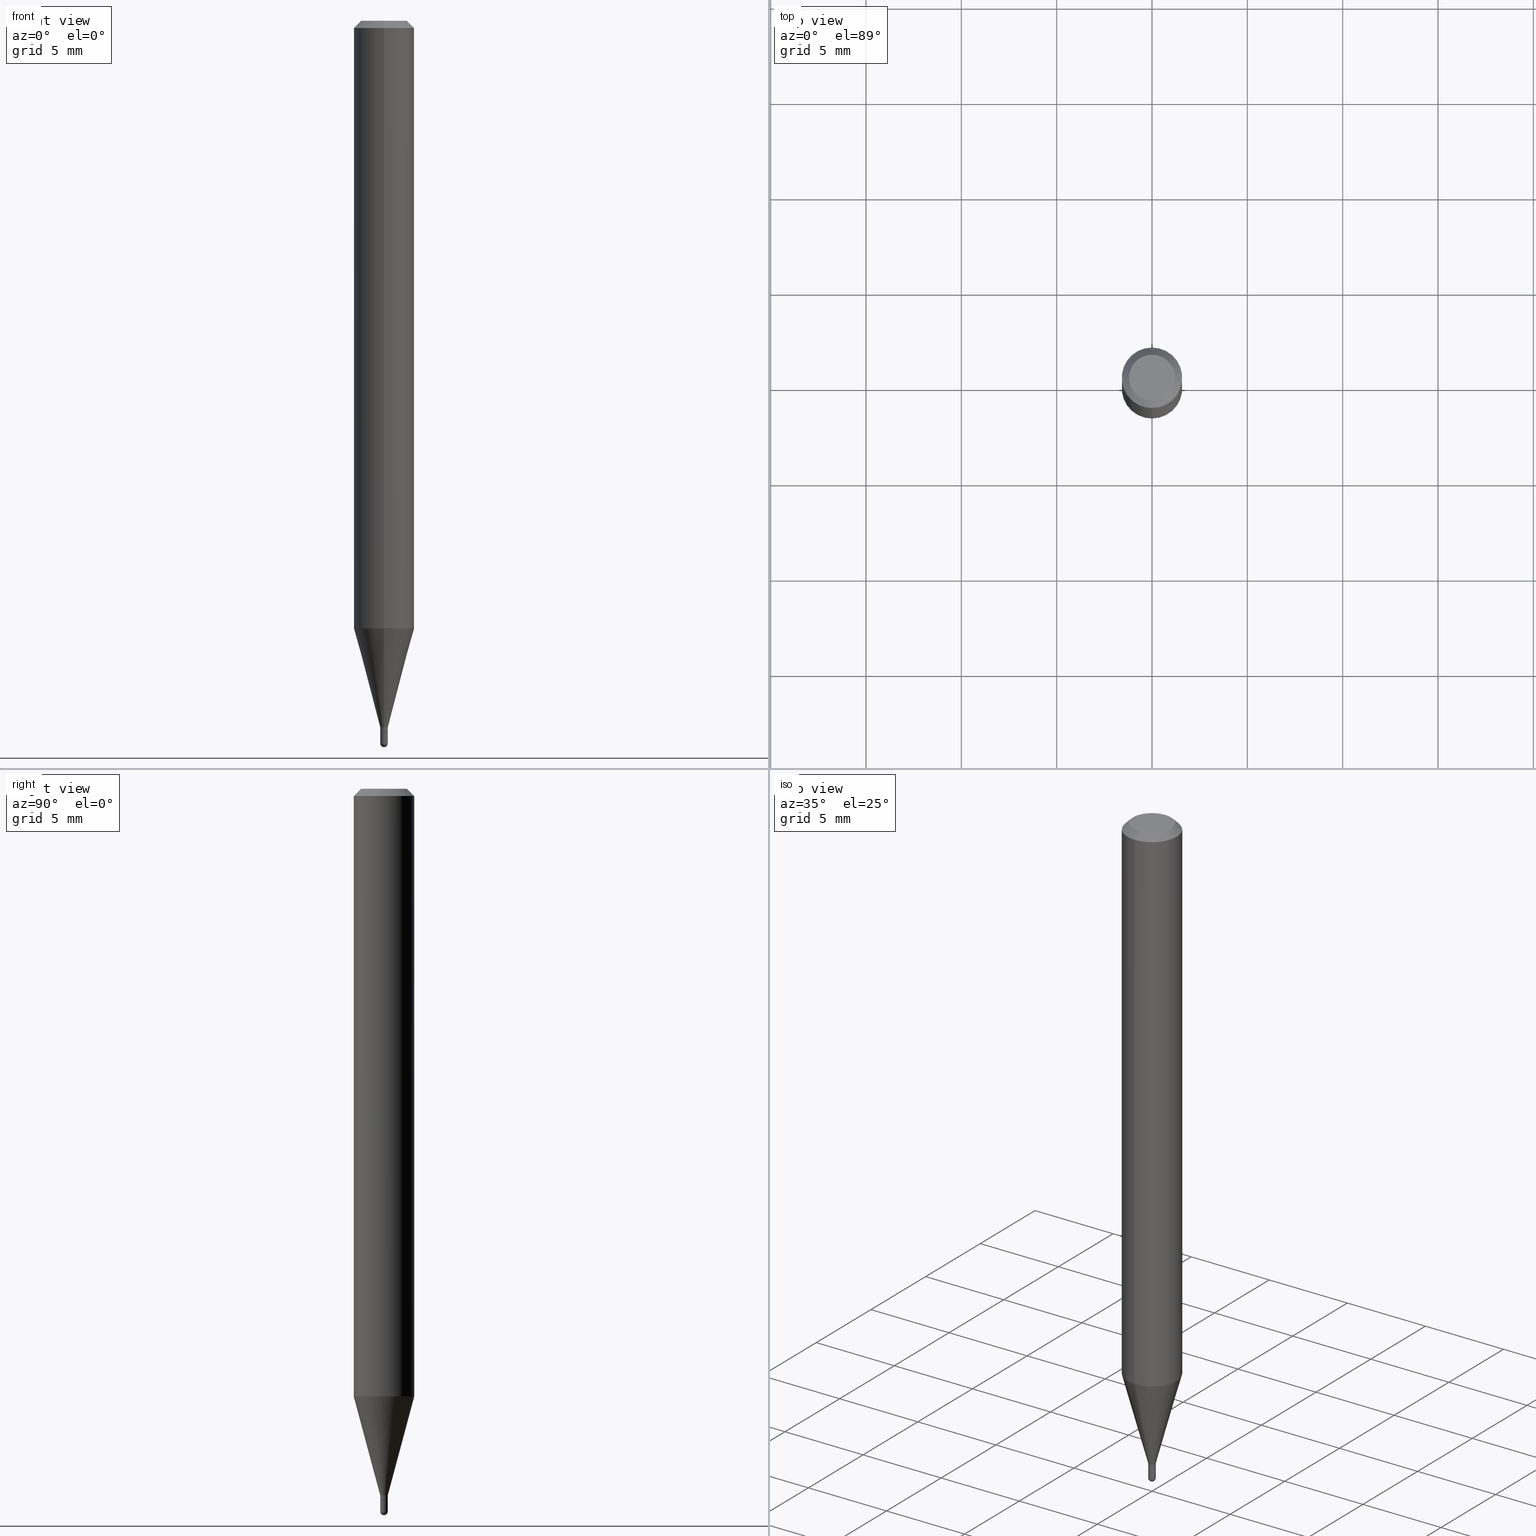
[diagram: canonical four-view strip — front | top / right | iso, engineering-drawing reading convention]
A machine part, canonical four-view strip (front | top / right | iso — engineering-drawing reading convention). The complete STEP part file that produces these views, byte-faithful:
ISO-10303-21;
HEADER;
FILE_DESCRIPTION (( 'STEP AP203' ),
    '1' );
FILE_NAME ('30031.STEP',
    '2024-03-08T15:16:30',
    ( '' ),
    ( '' ),
    'SwSTEP 2.0',
    'SolidWorks 2023',
    '' );
FILE_SCHEMA (( 'CONFIG_CONTROL_DESIGN' ));
ENDSEC;

DATA;
#1 = DIRECTION ( 'NONE',  ( -2.445232611711644986E-29, 3.491819582772540088E-15, 1.000000000000000000 ) ) ;
#2 = AXIS2_PLACEMENT_3D ( 'NONE', #370, #278, #377 ) ;
#3 = VECTOR ( 'NONE', #161, 39.37007874015748143 ) ;
#4 = EDGE_LOOP ( 'NONE', ( #254, #424 ) ) ;
#5 = CARTESIAN_POINT ( 'NONE',  ( 3.840629472727447874E-16, 0.04749999999999999362, -1.747056831868805136E-16 ) ) ;
#6 = APPLICATION_CONTEXT ( 'configuration controlled 3d designs of mechanical parts and assemblies' ) ;
#7 = EDGE_CURVE ( 'NONE', #144, #226, #283, .T. ) ;
#8 = DIRECTION ( 'NONE',  ( -2.445468806185136877E-29, 3.491481338843145188E-15, 1.000000000000000000 ) ) ;
#9 = PLANE ( 'NONE',  #438 ) ;
#10 = VECTOR ( 'NONE', #396, 39.37007874015748143 ) ;
#11 = CC_DESIGN_SECURITY_CLASSIFICATION ( #207, ( #477 ) ) ;
#12 = CARTESIAN_POINT ( 'NONE',  ( 3.649128552589461004E-29, -5.209988453821741932E-15, -1.492199999999999971 ) ) ;
#13 = DIRECTION ( 'NONE',  ( -2.445232611711644986E-29, 3.491819582772540483E-15, 1.000000000000000000 ) ) ;
#14 = CARTESIAN_POINT ( 'NONE',  ( 3.667869694424925332E-29, -5.237699620516385943E-15, -1.500000000000000222 ) ) ;
#15 = PRODUCT ( '30031', '30031', '', ( #494 ) ) ;
#16 = DIRECTION ( 'NONE',  ( -2.445232611711644986E-29, 3.491819582772540088E-15, 1.000000000000000000 ) ) ;
#17 = CIRCLE ( 'NONE', #284, 0.007799999999999999642 ) ;
#18 = ORIENTED_EDGE ( 'NONE', *, *, #512, .T. ) ;
#19 = APPROVAL_PERSON_ORGANIZATION ( #452, #62, #454 ) ;
#20 = VERTEX_POINT ( 'NONE', #126 ) ;
#21 = EDGE_CURVE ( 'NONE', #226, #264, #130, .T. ) ;
#22 = EDGE_CURVE ( 'NONE', #20, #264, #128, .T. ) ;
#23 = APPLICATION_PROTOCOL_DEFINITION ( 'international standard', 'config_control_design', 1994, #6 ) ;
#24 = CARTESIAN_POINT ( 'NONE',  ( 3.648461522883901316E-29, -5.210943678325075887E-15, -1.492199999999999971 ) ) ;
#25 = APPLICATION_PROTOCOL_DEFINITION ( 'international standard', 'config_control_design', 1994, #141 ) ;
#26 = PLANE ( 'NONE',  #108 ) ;
#27 = ORIENTED_EDGE ( 'NONE', *, *, #318, .F. ) ;
#28 = AXIS2_PLACEMENT_3D ( 'NONE', #488, #281, #446 ) ;
#29 = COORDINATED_UNIVERSAL_TIME_OFFSET ( 5, 0, .BEHIND. ) ;
#30 = DIRECTION ( 'NONE',  ( 2.445232611711644426E-29, -3.491819582772540483E-15, -1.000000000000000000 ) ) ;
#31 = ORIENTED_EDGE ( 'NONE', *, *, #43, .T. ) ;
#32 = CALENDAR_DATE ( 2024, 8, 3 ) ;
#33 = CYLINDRICAL_SURFACE ( 'NONE', #98, 0.007799999999999999642 ) ;
#34 = EDGE_LOOP ( 'NONE', ( #428, #150, #107, #194 ) ) ;
#35 = ORIENTED_EDGE ( 'NONE', *, *, #218, .F. ) ;
#36 = AXIS2_PLACEMENT_3D ( 'NONE', #297, #64, #73 ) ;
#37 = EDGE_LOOP ( 'NONE', ( #236, #435, #317, #228 ) ) ;
#38 = ORIENTED_EDGE ( 'NONE', *, *, #119, .F. ) ;
#39 = CARTESIAN_POINT ( 'NONE',  ( -5.542233338925151819E-17, -0.007800000000005239374, -1.492199999999999971 ) ) ;
#40 = VERTEX_POINT ( 'NONE', #97 ) ;
#41 = FACE_OUTER_BOUND ( 'NONE', #198, .T. ) ;
#42 = AXIS2_PLACEMENT_3D ( 'NONE', #124, #277, #90 ) ;
#43 = EDGE_CURVE ( 'NONE', #264, #160, #365, .T. ) ;
#44 = VERTEX_POINT ( 'NONE', #332 ) ;
#45 = FACE_OUTER_BOUND ( 'NONE', #34, .T. ) ;
#46 = DIRECTION ( 'NONE',  ( -6.982962677686265922E-15, -1.000000000000000000, 0.000000000000000000 ) ) ;
#47 = DIRECTION ( 'NONE',  ( -2.445232611711644986E-29, 3.491819582772540088E-15, 1.000000000000000000 ) ) ;
#48 = UNCERTAINTY_MEASURE_WITH_UNIT (LENGTH_MEASURE( 1.000000000000000082E-05 ), #205, 'distance_accuracy_value', 'NONE');
#49 = CARTESIAN_POINT ( 'NONE',  ( 3.592046706604406780E-29, -5.129482967092862317E-15, -1.469000000000000083 ) ) ;
#50 = CIRCLE ( 'NONE', #225, 0.06250000000000000000 ) ;
#51 = DIRECTION ( 'NONE',  ( -2.445232611711644986E-29, 3.491819582772540088E-15, 1.000000000000000000 ) ) ;
#52 = DIRECTION ( 'NONE',  ( -6.982962677686265922E-15, -1.000000000000000000, 3.491819582772540483E-15 ) ) ;
#53 = CARTESIAN_POINT ( 'NONE',  ( 0.000000000000000000, 0.000000000000000000, 0.000000000000000000 ) ) ;
#54 = DIRECTION ( 'NONE',  ( 1.000000000000000000, 0.000000000000000000, 0.000000000000000000 ) ) ;
#55 = EDGE_CURVE ( 'NONE', #473, #439, #184, .T. ) ;
#56 = ORIENTED_EDGE ( 'NONE', *, *, #497, .T. ) ;
#57 = CARTESIAN_POINT ( 'NONE',  ( 0.000000000000000000, 0.000000000000000000, 0.000000000000000000 ) ) ;
#58 = APPROVAL ( #117, 'UNSPECIFIED' ) ;
#59 = AXIS2_PLACEMENT_3D ( 'NONE', #378, #30, #347 ) ;
#60 = ORIENTED_EDGE ( 'NONE', *, *, #466, .F. ) ;
#61 = AXIS2_PLACEMENT_3D ( 'NONE', #234, #1, #46 ) ;
#62 = APPROVAL ( #337, 'UNSPECIFIED' ) ;
#63 = DIRECTION ( 'NONE',  ( -6.982962677686265922E-15, -1.000000000000000000, 0.000000000000000000 ) ) ;
#64 = DIRECTION ( 'NONE',  ( -2.445232611711644986E-29, 3.491819582772540088E-15, 1.000000000000000000 ) ) ;
#65 = DIRECTION ( 'NONE',  ( -2.445232611711644986E-29, 3.491819582772540088E-15, 1.000000000000000000 ) ) ;
#66 = DIRECTION ( 'NONE',  ( 1.000000000000000000, -6.982962677686265922E-15, 4.883557194083112340E-29 ) ) ;
#67 = ORIENTED_EDGE ( 'NONE', *, *, #21, .T. ) ;
#68 = LENGTH_MEASURE_WITH_UNIT ( LENGTH_MEASURE( 0.02539999999999999897 ), #134 );
#69 = CARTESIAN_POINT ( 'NONE',  ( -5.446710888591661439E-17, -0.007800000000005077178, -1.468500000000000139 ) ) ;
#70 = VERTEX_POINT ( 'NONE', #245 ) ;
#71 = AXIS2_PLACEMENT_3D ( 'NONE', #57, #103, #249 ) ;
#72 = CALENDAR_DATE ( 2024, 8, 3 ) ;
#73 = DIRECTION ( 'NONE',  ( -6.982962677686265922E-15, -1.000000000000000000, 3.491819582772540483E-15 ) ) ;
#74 = ORIENTED_EDGE ( 'NONE', *, *, #43, .F. ) ;
#75 = CARTESIAN_POINT ( 'NONE',  ( -4.287811248607203282E-16, -0.06250000000000005551, -0.01499999999999979128 ) ) ;
#76 = ORIENTED_EDGE ( 'NONE', *, *, #389, .F. ) ;
#77 = EDGE_CURVE ( 'NONE', #160, #388, #151, .T. ) ;
#78 = AXIS2_PLACEMENT_3D ( 'NONE', #24, #210, #140 ) ;
#79 = ORIENTED_EDGE ( 'NONE', *, *, #318, .T. ) ;
#80 = CARTESIAN_POINT ( 'NONE',  ( -4.364351673553916201E-16, -0.06250000000000000000, 2.182387239232837555E-16 ) ) ;
#81 = ORIENTED_EDGE ( 'NONE', *, *, #196, .T. ) ;
#82 = CIRCLE ( 'NONE', #350, 0.007800000000000059490 ) ;
#83 = DIRECTION ( 'NONE',  ( -6.982962677686265922E-15, -1.000000000000000000, 4.370956789862821150E-15 ) ) ;
#84 = CC_DESIGN_APPROVAL ( #58, ( #477 ) ) ;
#85 = ORIENTED_EDGE ( 'NONE', *, *, #182, .T. ) ;
#86 = DIRECTION ( 'NONE',  ( 6.982962677686265922E-15, 1.000000000000000000, -3.483106191921935554E-15 ) ) ;
#87 = CARTESIAN_POINT ( 'NONE',  ( 4.440892098500625669E-16, 0.06250000000000000000, -2.182387239232837555E-16 ) ) ;
#88 = DIRECTION ( 'NONE',  ( -6.982962677686265922E-15, -1.000000000000000000, 3.483106191921935554E-15 ) ) ;
#89 = CC_DESIGN_DATE_AND_TIME_ASSIGNMENT ( #387, #214, ( #207 ) ) ;
#90 = DIRECTION ( 'NONE',  ( 1.000000000000000000, -6.982962677686283277E-15, 0.000000000000000000 ) ) ;
#91 = AXIS2_PLACEMENT_3D ( 'NONE', #299, #408, #54 ) ;
#92 = FACE_OUTER_BOUND ( 'NONE', #338, .T. ) ;
#93 = ORIENTED_EDGE ( 'NONE', *, *, #374, .T. ) ;
#94 = CARTESIAN_POINT ( 'NONE',  ( -4.364351673553912750E-16, -0.06250000000000005551, -0.01499999999999979128 ) ) ;
#95 = EDGE_CURVE ( 'NONE', #358, #70, #499, .T. ) ;
#96 = ADVANCED_FACE ( 'NONE', ( #369 ), #157, .T. ) ;
#97 = CARTESIAN_POINT ( 'NONE',  ( -4.364351673553610024E-16, -0.06250000000000438538, -1.254856820825982933 ) ) ;
#98 = AXIS2_PLACEMENT_3D ( 'NONE', #201, #400, #399 ) ;
#99 = DIRECTION ( 'NONE',  ( -2.445232611711644986E-29, 3.491819582772540088E-15, 1.000000000000000000 ) ) ;
#100 = AXIS2_PLACEMENT_3D ( 'NONE', #197, #398, #482 ) ;
#101 = SPHERICAL_SURFACE ( 'NONE', #457, 0.007800000000000059490 ) ;
#102 = DIRECTION ( 'NONE',  ( 2.438088387897960049E-29, -3.491481338843145188E-15, -1.000000000000000000 ) ) ;
#103 = DIRECTION ( 'NONE',  ( -2.445232611711644986E-29, 3.491819582772540088E-15, 1.000000000000000000 ) ) ;
#104 = DIRECTION ( 'NONE',  ( -2.445468806185136597E-29, 3.491481338843145583E-15, 1.000000000000000000 ) ) ;
#105 = ORIENTED_EDGE ( 'NONE', *, *, #145, .T. ) ;
#106 = DIRECTION ( 'NONE',  ( 6.982962677686265922E-15, 1.000000000000000000, -3.483106191921935554E-15 ) ) ;
#107 = ORIENTED_EDGE ( 'NONE', *, *, #389, .T. ) ;
#108 = AXIS2_PLACEMENT_3D ( 'NONE', #459, #102, #143 ) ;
#109 = PERSON_AND_ORGANIZATION ( #274, #414 ) ;
#110 = CARTESIAN_POINT ( 'NONE',  ( -0.007799999999999999642, 5.542233338928781195E-17, -3.836769370398826244E-31 ) ) ;
#111 = ORIENTED_EDGE ( 'NONE', *, *, #497, .F. ) ;
#112 = EDGE_CURVE ( 'NONE', #264, #226, #476, .T. ) ;
#113 = ORIENTED_EDGE ( 'NONE', *, *, #22, .F. ) ;
#114 = VERTEX_POINT ( 'NONE', #14 ) ;
#115 = EDGE_CURVE ( 'NONE', #44, #147, #486, .T. ) ;
#116 = CIRCLE ( 'NONE', #509, 0.007799999999999999642 ) ;
#117 = APPROVAL_STATUS ( 'not_yet_approved' ) ;
#118 = CONICAL_SURFACE ( 'NONE', #61, 0.007799999999999922447, 0.2617993877991502960 ) ;
#119 = EDGE_CURVE ( 'NONE', #397, #251, #232, .T. ) ;
#120 = CYLINDRICAL_SURFACE ( 'NONE', #392, 0.06250000000000000000 ) ;
#121 = SPHERICAL_SURFACE ( 'NONE', #139, 0.007800000000000059490 ) ;
#122 = ORIENTED_EDGE ( 'NONE', *, *, #315, .F. ) ;
#123 = VECTOR ( 'NONE', #407, 39.37007874015748143 ) ;
#124 = CARTESIAN_POINT ( 'NONE',  ( 3.649128552589461004E-29, -5.209988453821741932E-15, -1.492199999999999971 ) ) ;
#125 = DIRECTION ( 'NONE',  ( 1.000000000000000000, -6.982962677686266711E-15, 4.876176775795935793E-29 ) ) ;
#126 = CARTESIAN_POINT ( 'NONE',  ( -5.097562754707381679E-17, -0.007300000000005128775, -1.469000000000000083 ) ) ;
#127 = DIRECTION ( 'NONE',  ( -2.445232611711644986E-29, 3.491819582772540088E-15, 1.000000000000000000 ) ) ;
#128 = LINE ( 'NONE', #453, #456 ) ;
#129 = CARTESIAN_POINT ( 'NONE',  ( 3.567594380487290426E-29, -5.094564771265136885E-15, -1.459000000000000297 ) ) ;
#130 = CIRCLE ( 'NONE', #382, 0.007799999999999923314 ) ;
#131 = AXIS2_PLACEMENT_3D ( 'NONE', #155, #272, #83 ) ;
#132 = DIRECTION ( 'NONE',  ( -6.982962677686265922E-15, -1.000000000000000000, 0.000000000000000000 ) ) ;
#133 = CC_DESIGN_DATE_AND_TIME_ASSIGNMENT ( #309, #263, ( #148 ) ) ;
#134 =( LENGTH_UNIT ( ) NAMED_UNIT ( * ) SI_UNIT ( $, .METRE. ) );
#135 = ORIENTED_EDGE ( 'NONE', *, *, #21, .F. ) ;
#136 = LINE ( 'NONE', #110, #333 ) ;
#137 = ADVANCED_FACE ( 'NONE', ( #92 ), #240, .T. ) ;
#138 = CARTESIAN_POINT ( 'NONE',  ( 3.592393676285966338E-29, -5.128986086760581011E-15, -1.469000000000000083 ) ) ;
#139 = AXIS2_PLACEMENT_3D ( 'NONE', #230, #320, #436 ) ;
#140 = DIRECTION ( 'NONE',  ( -7.105427357601000281E-15, -1.000000000000000000, 0.000000000000000000 ) ) ;
#141 = APPLICATION_CONTEXT ( 'configuration controlled 3d designs of mechanical parts and assemblies' ) ;
#142 = DATE_AND_TIME ( #72, #295 ) ;
#143 = DIRECTION ( 'NONE',  ( -1.000000000000000000, 6.982962677686265922E-15, -4.876176775795935793E-29 ) ) ;
#144 = VERTEX_POINT ( 'NONE', #146 ) ;
#145 = EDGE_CURVE ( 'NONE', #226, #388, #464, .T. ) ;
#146 = CARTESIAN_POINT ( 'NONE',  ( 5.364597654992319424E-17, 0.007299999999994869621, -1.469000000000000083 ) ) ;
#147 = VERTEX_POINT ( 'NONE', #508 ) ;
#148 = PRODUCT_DEFINITION ( 'UNKNOWN', '', #477, #241 ) ;
#149 = ORIENTED_EDGE ( 'NONE', *, *, #7, .F. ) ;
#150 = ORIENTED_EDGE ( 'NONE', *, *, #335, .T. ) ;
#151 = CIRCLE ( 'NONE', #206, 0.007799999999999922447 ) ;
#152 = CARTESIAN_POINT ( 'NONE',  ( 3.592046706604406780E-29, -5.129482967092862317E-15, -1.469000000000000083 ) ) ;
#153 = DIRECTION ( 'NONE',  ( -2.445232611711644986E-29, 3.491819582772540088E-15, 1.000000000000000000 ) ) ;
#154 = EDGE_CURVE ( 'NONE', #114, #251, #294, .T. ) ;
#155 = CARTESIAN_POINT ( 'NONE',  ( 3.068416821312490744E-29, -4.381733620535860243E-15, -1.254856820825983155 ) ) ;
#156 = EDGE_CURVE ( 'NONE', #388, #44, #455, .T. ) ;
#157 = CONICAL_SURFACE ( 'NONE', #265, 0.007799999999999922447, 0.2617993877991502960 ) ;
#158 = FACE_OUTER_BOUND ( 'NONE', #223, .T. ) ;
#159 = VECTOR ( 'NONE', #8, 39.37007874015748143 ) ;
#160 = VERTEX_POINT ( 'NONE', #170 ) ;
#161 = DIRECTION ( 'NONE',  ( 4.937700262164548042E-15, 0.7071067811865451302, -0.7071067811865499042 ) ) ;
#162 = DIRECTION ( 'NONE',  ( -6.982962677686265922E-15, -1.000000000000000000, 0.000000000000000000 ) ) ;
#163 = DIRECTION ( 'NONE',  ( -6.982962677686265922E-15, -1.000000000000000000, 3.491819582772540088E-15 ) ) ;
#164 =( NAMED_UNIT ( * ) SI_UNIT ( $, .STERADIAN. ) SOLID_ANGLE_UNIT ( ) );
#165 =( GEOMETRIC_REPRESENTATION_CONTEXT ( 3 ) GLOBAL_UNCERTAINTY_ASSIGNED_CONTEXT ( ( #48 ) ) GLOBAL_UNIT_ASSIGNED_CONTEXT ( ( #205, #376, #164 ) ) REPRESENTATION_CONTEXT ( 'NONE', 'WORKASPACE' ) );
#166 = DIRECTION ( 'NONE',  ( -2.445232611711644986E-29, 3.491819582772540483E-15, 1.000000000000000000 ) ) ;
#167 = PERSON_AND_ORGANIZATION ( #274, #414 ) ;
#168 = CARTESIAN_POINT ( 'NONE',  ( 3.590824090298550822E-29, -5.127737057301476164E-15, -1.468500000000000139 ) ) ;
#169 = CYLINDRICAL_SURFACE ( 'NONE', #71, 0.007799999999999922447 ) ;
#170 = CARTESIAN_POINT ( 'NONE',  ( -5.446710888591665753E-17, -0.007800000000005017330, -1.459000000000000297 ) ) ;
#171 = DIRECTION ( 'NONE',  ( -2.445232611711644986E-29, 3.491819582772540088E-15, 1.000000000000000000 ) ) ;
#172 = CC_DESIGN_PERSON_AND_ORGANIZATION_ASSIGNMENT ( #109, #304, ( #477 ) ) ;
#173 = DIRECTION ( 'NONE',  ( -4.851104656540964275E-15, -0.7071067811865500152, -0.7071067811865450192 ) ) ;
#174 = ORIENTED_EDGE ( 'NONE', *, *, #112, .F. ) ;
#175 = AXIS2_PLACEMENT_3D ( 'NONE', #242, #65, #339 ) ;
#176 = PERSON_AND_ORGANIZATION ( #274, #414 ) ;
#177 = LINE ( 'NONE', #75, #343 ) ;
#178 = ORIENTED_EDGE ( 'NONE', *, *, #95, .T. ) ;
#179 = CALENDAR_DATE ( 2024, 8, 3 ) ;
#180 = CARTESIAN_POINT ( 'NONE',  ( 3.592393676285966338E-29, -5.128986086760581011E-15, -1.469000000000000083 ) ) ;
#181 = ADVANCED_FACE ( 'NONE', ( #212 ), #26, .F. ) ;
#182 = EDGE_CURVE ( 'NONE', #471, #147, #50, .T. ) ;
#183 = EDGE_LOOP ( 'NONE', ( #451, #105, #289, #74 ) ) ;
#184 = CIRCLE ( 'NONE', #422, 0.04749999999999999362 ) ;
#185 = CC_DESIGN_APPROVAL ( #62, ( #148 ) ) ;
#186 = APPROVAL_ROLE ( '' ) ;
#187 = ORIENTED_EDGE ( 'NONE', *, *, #335, .F. ) ;
#188 = ORIENTED_EDGE ( 'NONE', *, *, #409, .F. ) ;
#189 = DIRECTION ( 'NONE',  ( 2.445232611711644986E-29, -3.491819582772540088E-15, -1.000000000000000000 ) ) ;
#190 = ORIENTED_EDGE ( 'NONE', *, *, #95, .F. ) ;
#191 = AXIS2_PLACEMENT_3D ( 'NONE', #53, #16, #163 ) ;
#192 = AXIS2_PLACEMENT_3D ( 'NONE', #360, #434, #125 ) ;
#193 = CARTESIAN_POINT ( 'NONE',  ( 0.000000000000000000, 0.000000000000000000, 0.000000000000000000 ) ) ;
#194 = ORIENTED_EDGE ( 'NONE', *, *, #329, .F. ) ;
#195 = CARTESIAN_POINT ( 'NONE',  ( 4.364351673553919652E-16, 0.06249999999999995143, -0.01500000000000022669 ) ) ;
#196 = EDGE_CURVE ( 'NONE', #439, #473, #256, .T. ) ;
#197 = CARTESIAN_POINT ( 'NONE',  ( 3.592046706604406780E-29, -5.129482967092862317E-15, -1.469000000000000083 ) ) ;
#198 = EDGE_LOOP ( 'NONE', ( #393, #18, #56, #187 ) ) ;
#199 = LINE ( 'NONE', #195, #3 ) ;
#200 = DIRECTION ( 'NONE',  ( 1.000000000000000000, -6.982962677686283277E-15, 0.000000000000000000 ) ) ;
#201 = CARTESIAN_POINT ( 'NONE',  ( 0.000000000000000000, 0.000000000000000000, 0.000000000000000000 ) ) ;
#202 = DIRECTION ( 'NONE',  ( -2.445468806185136597E-29, 3.491481338843145583E-15, 1.000000000000000000 ) ) ;
#203 = DIRECTION ( 'NONE',  ( -2.445232611711644986E-29, 3.491819582772540088E-15, 1.000000000000000000 ) ) ;
#204 = DIRECTION ( 'NONE',  ( -6.982962677686265922E-15, -1.000000000000000000, 0.000000000000000000 ) ) ;
#205 =( CONVERSION_BASED_UNIT ( 'INCH', #68 ) LENGTH_UNIT ( ) NAMED_UNIT ( #229 ) );
#206 = AXIS2_PLACEMENT_3D ( 'NONE', #496, #208, #132 ) ;
#207 = SECURITY_CLASSIFICATION ( '', '', #381 ) ;
#208 = DIRECTION ( 'NONE',  ( -2.445232611711644986E-29, 3.491819582772540088E-15, 1.000000000000000000 ) ) ;
#209 = LINE ( 'NONE', #489, #492 ) ;
#210 = DIRECTION ( 'NONE',  ( -1.000000000000000000, 7.105427357601001070E-15, -4.926315508542082329E-29 ) ) ;
#211 = DATE_AND_TIME ( #246, #227 ) ;
#212 = FACE_OUTER_BOUND ( 'NONE', #348, .T. ) ;
#213 = EDGE_LOOP ( 'NONE', ( #122, #355, #38, #27 ) ) ;
#214 = DATE_TIME_ROLE ( 'classification_date' ) ;
#215 = FACE_OUTER_BOUND ( 'NONE', #183, .T. ) ;
#216 = CIRCLE ( 'NONE', #285, 0.007299999999999999198 ) ;
#217 = APPROVAL_ROLE ( '' ) ;
#218 = EDGE_CURVE ( 'NONE', #418, #420, #17, .T. ) ;
#219 = DIRECTION ( 'NONE',  ( 1.000000000000000000, -6.982962677686283277E-15, 0.000000000000000000 ) ) ;
#220 = ORIENTED_EDGE ( 'NONE', *, *, #255, .F. ) ;
#221 = PERSON_AND_ORGANIZATION_ROLE ( 'design_supplier' ) ;
#222 = DIRECTION ( 'NONE',  ( 1.000000000000000000, -6.982962677686283277E-15, 0.000000000000000000 ) ) ;
#223 = EDGE_LOOP ( 'NONE', ( #79, #361, #35, #394, #178 ) ) ;
#224 = ORIENTED_EDGE ( 'NONE', *, *, #55, .F. ) ;
#225 = AXIS2_PLACEMENT_3D ( 'NONE', #498, #356, #300 ) ;
#226 = VERTEX_POINT ( 'NONE', #470 ) ;
#227 = LOCAL_TIME ( 10, 16, 30.00000000000000000, #252 ) ;
#228 = ORIENTED_EDGE ( 'NONE', *, *, #329, .T. ) ;
#229 = DIMENSIONAL_EXPONENTS ( 1.000000000000000000, 0.000000000000000000, 0.000000000000000000, 0.000000000000000000, 0.000000000000000000, 0.000000000000000000, 0.000000000000000000 ) ;
#230 = CARTESIAN_POINT ( 'NONE',  ( 3.648461522883901316E-29, -5.210943678325075887E-15, -1.492199999999999971 ) ) ;
#231 = ORIENTED_EDGE ( 'NONE', *, *, #77, .T. ) ;
#232 = CIRCLE ( 'NONE', #28, 0.007799999999999999642 ) ;
#233 = CIRCLE ( 'NONE', #42, 0.007799999999999999642 ) ;
#234 = CARTESIAN_POINT ( 'NONE',  ( 3.567594380487290426E-29, -5.094564771265136885E-15, -1.459000000000000297 ) ) ;
#235 = CARTESIAN_POINT ( 'NONE',  ( 0.007799999999999999642, -5.183453195646533500E-15, -1.469000000000000083 ) ) ;
#236 = ORIENTED_EDGE ( 'NONE', *, *, #268, .F. ) ;
#237 = FACE_OUTER_BOUND ( 'NONE', #270, .T. ) ;
#238 = CARTESIAN_POINT ( 'NONE',  ( 5.186961971052321953E-17, 0.007299999999994869621, -1.469000000000000083 ) ) ;
#239 = CARTESIAN_POINT ( 'NONE',  ( 3.592046706604406780E-29, -5.129482967092862317E-15, -1.469000000000000083 ) ) ;
#240 = CYLINDRICAL_SURFACE ( 'NONE', #191, 0.06250000000000000000 ) ;
#241 = DESIGN_CONTEXT ( 'detailed design', #141, 'design' ) ;
#242 = CARTESIAN_POINT ( 'NONE',  ( 3.068416821312490744E-29, -4.381733620535860243E-15, -1.254856820825983155 ) ) ;
#243 = ORIENTED_EDGE ( 'NONE', *, *, #7, .T. ) ;
#244 = CARTESIAN_POINT ( 'NONE',  ( -3.773273898774340269E-16, -0.04749999999999999362, 1.570171771765107987E-16 ) ) ;
#245 = CARTESIAN_POINT ( 'NONE',  ( 5.446710888598957169E-17, 0.007799999999994819758, -1.492199999999999971 ) ) ;
#246 = CALENDAR_DATE ( 2024, 8, 3 ) ;
#247 = CIRCLE ( 'NONE', #493, 0.007299999999999999198 ) ;
#248 = DIRECTION ( 'NONE',  ( 1.000000000000000000, -6.982962677686283277E-15, 0.000000000000000000 ) ) ;
#249 = DIRECTION ( 'NONE',  ( -6.982962677686265922E-15, -1.000000000000000000, 3.491819582772540483E-15 ) ) ;
#250 = FACE_OUTER_BOUND ( 'NONE', #37, .T. ) ;
#251 = VERTEX_POINT ( 'NONE', #39 ) ;
#252 = COORDINATED_UNIVERSAL_TIME_OFFSET ( 5, 0, .BEHIND. ) ;
#253 = FACE_OUTER_BOUND ( 'NONE', #312, .T. ) ;
#254 = ORIENTED_EDGE ( 'NONE', *, *, #372, .F. ) ;
#255 = EDGE_CURVE ( 'NONE', #397, #420, #136, .T. ) ;
#256 = CIRCLE ( 'NONE', #437, 0.04749999999999999362 ) ;
#257 = CIRCLE ( 'NONE', #131, 0.06250000000000000000 ) ;
#258 = CARTESIAN_POINT ( 'NONE',  ( 3.648461522883901316E-29, -5.210943678325075887E-15, -1.492199999999999971 ) ) ;
#259 = ORIENTED_EDGE ( 'NONE', *, *, #315, .T. ) ;
#260 = DATE_AND_TIME ( #302, #510 ) ;
#261 = CARTESIAN_POINT ( 'NONE',  ( 3.667848917567469827E-31, -5.237729374158814249E-17, -0.01500000000000000812 ) ) ;
#262 = EDGE_LOOP ( 'NONE', ( #81, #505 ) ) ;
#263 = DATE_TIME_ROLE ( 'creation_date' ) ;
#264 = VERTEX_POINT ( 'NONE', #69 ) ;
#265 = AXIS2_PLACEMENT_3D ( 'NONE', #286, #326, #162 ) ;
#266 = ORIENTED_EDGE ( 'NONE', *, *, #145, .F. ) ;
#267 = ADVANCED_FACE ( 'NONE', ( #250 ), #366, .T. ) ;
#268 = EDGE_CURVE ( 'NONE', #473, #471, #177, .T. ) ;
#269 = CARTESIAN_POINT ( 'NONE',  ( -0.007799999999999999642, -5.114064936901873450E-15, -1.469000000000000083 ) ) ;
#270 = EDGE_LOOP ( 'NONE', ( #224, #460, #85, #308 ) ) ;
#271 = CC_DESIGN_PERSON_AND_ORGANIZATION_ASSIGNMENT ( #176, #221, ( #477 ) ) ;
#272 = DIRECTION ( 'NONE',  ( -2.445232611711644986E-29, 3.491819582772540088E-15, 1.000000000000000000 ) ) ;
#273 = ORIENTED_EDGE ( 'NONE', *, *, #461, .T. ) ;
#274 = PERSON ( 'UNSPECIFIED', 'UNSPECIFIED', 'UNSPECIFIED', ('UNSPECIFIED'), ('UNSPECIFIED'), ('UNSPECIFIED') ) ;
#275 = AXIS2_PLACEMENT_3D ( 'NONE', #419, #417, #349 ) ;
#276 = CONICAL_SURFACE ( 'NONE', #100, 0.007299999999999999198, 0.7853981633974739252 ) ;
#277 = DIRECTION ( 'NONE',  ( -2.445468806185136597E-29, 3.491481338843145583E-15, 1.000000000000000000 ) ) ;
#278 = DIRECTION ( 'NONE',  ( -2.445232611711644986E-29, 3.491819582772540088E-15, 1.000000000000000000 ) ) ;
#279 = FACE_OUTER_BOUND ( 'NONE', #298, .T. ) ;
#280 = ADVANCED_FACE ( 'NONE', ( #215 ), #501, .T. ) ;
#281 = DIRECTION ( 'NONE',  ( -2.445468806185136597E-29, 3.491481338843145583E-15, 1.000000000000000000 ) ) ;
#282 = DIRECTION ( 'NONE',  ( -6.982962677686265922E-15, -1.000000000000000000, 0.000000000000000000 ) ) ;
#283 = LINE ( 'NONE', #238, #429 ) ;
#284 = AXIS2_PLACEMENT_3D ( 'NONE', #138, #462, #248 ) ;
#285 = AXIS2_PLACEMENT_3D ( 'NONE', #49, #203, #371 ) ;
#286 = CARTESIAN_POINT ( 'NONE',  ( 3.567594380487290426E-29, -5.094564771265136885E-15, -1.459000000000000297 ) ) ;
#287 = EDGE_CURVE ( 'NONE', #420, #418, #116, .T. ) ;
#288 = PERSON_AND_ORGANIZATION_ROLE ( 'design_owner' ) ;
#289 = ORIENTED_EDGE ( 'NONE', *, *, #77, .F. ) ;
#290 = DIRECTION ( 'NONE',  ( -1.000000000000000000, 6.982962677686265922E-15, -4.883557194083112901E-29 ) ) ;
#291 = ADVANCED_FACE ( 'NONE', ( #253 ), #467, .T. ) ;
#292 = FACE_OUTER_BOUND ( 'NONE', #262, .T. ) ;
#293 = APPROVAL_DATE_TIME ( #211, #62 ) ;
#294 = CIRCLE ( 'NONE', #78, 0.007800000000000059490 ) ;
#295 = LOCAL_TIME ( 10, 16, 30.00000000000000000, #390 ) ;
#296 = ADVANCED_FACE ( 'NONE', ( #292 ), #383, .F. ) ;
#297 = CARTESIAN_POINT ( 'NONE',  ( 0.000000000000000000, 0.000000000000000000, 0.000000000000000000 ) ) ;
#298 = EDGE_LOOP ( 'NONE', ( #479, #259, #190, #188 ) ) ;
#299 = CARTESIAN_POINT ( 'NONE',  ( 0.000000000000000000, 0.000000000000000000, 0.000000000000000000 ) ) ;
#300 = DIRECTION ( 'NONE',  ( -6.982962677686265922E-15, -1.000000000000000000, 3.483106191921935554E-15 ) ) ;
#301 = ORIENTED_EDGE ( 'NONE', *, *, #182, .F. ) ;
#302 = CALENDAR_DATE ( 2024, 8, 3 ) ;
#303 = DIRECTION ( 'NONE',  ( -2.445468806185136597E-29, 3.491481338843145583E-15, 1.000000000000000000 ) ) ;
#304 = PERSON_AND_ORGANIZATION_ROLE ( 'creator' ) ;
#305 = AXIS2_PLACEMENT_3D ( 'NONE', #261, #189, #106 ) ;
#306 = CIRCLE ( 'NONE', #359, 0.007799999999999922447 ) ;
#307 = CARTESIAN_POINT ( 'NONE',  ( 5.542233338932293475E-17, 0.007799999999994828431, -1.459000000000000297 ) ) ;
#308 = ORIENTED_EDGE ( 'NONE', *, *, #362, .F. ) ;
#309 = DATE_AND_TIME ( #179, #405 ) ;
#310 = APPROVAL ( #503, 'UNSPECIFIED' ) ;
#311 = ORIENTED_EDGE ( 'NONE', *, *, #372, .T. ) ;
#312 = EDGE_LOOP ( 'NONE', ( #311, #243, #174, #113 ) ) ;
#313 = PERSON_AND_ORGANIZATION_ROLE ( 'classification_officer' ) ;
#314 = MANIFOLD_SOLID_BREP ( 'Body-Move/Copy2[1]', #357 ) ;
#315 = EDGE_CURVE ( 'NONE', #114, #70, #82, .T. ) ;
#316 = CARTESIAN_POINT ( 'NONE',  ( 2.497557716197082045E-16, 0.007799999999994826697, -1.459000000000000297 ) ) ;
#317 = ORIENTED_EDGE ( 'NONE', *, *, #362, .T. ) ;
#318 = EDGE_CURVE ( 'NONE', #70, #397, #413, .T. ) ;
#319 = ADVANCED_FACE ( 'NONE', ( #386 ), #33, .T. ) ;
#320 = DIRECTION ( 'NONE',  ( -1.000000000000000000, 6.982962677686265922E-15, -4.883557194083112901E-29 ) ) ;
#321 = LINE ( 'NONE', #440, #159 ) ;
#322 = AXIS2_PLACEMENT_3D ( 'NONE', #504, #303, #219 ) ;
#323 = CIRCLE ( 'NONE', #175, 0.06250000000000000000 ) ;
#324 = DIRECTION ( 'NONE',  ( 2.445232611711644986E-29, -3.491819582772540088E-15, -1.000000000000000000 ) ) ;
#325 = ADVANCED_BREP_SHAPE_REPRESENTATION ( '30031', ( #314, #475, #91 ), #165 ) ;
#326 = DIRECTION ( 'NONE',  ( -2.445232611711644986E-29, 3.491819582772540088E-15, 1.000000000000000000 ) ) ;
#327 = FACE_OUTER_BOUND ( 'NONE', #474, .T. ) ;
#328 = PRODUCT_RELATED_PRODUCT_CATEGORY ( 'detail', '', ( #15 ) ) ;
#329 = EDGE_CURVE ( 'NONE', #147, #471, #483, .T. ) ;
#330 = ORIENTED_EDGE ( 'NONE', *, *, #218, .T. ) ;
#331 = CARTESIAN_POINT ( 'NONE',  ( 3.648461522883901316E-29, -5.210943678325075887E-15, -1.492199999999999971 ) ) ;
#332 = CARTESIAN_POINT ( 'NONE',  ( 4.440892098500930859E-16, 0.06249999999999560074, -1.254856820825983377 ) ) ;
#333 = VECTOR ( 'NONE', #415, 39.37007874015748143 ) ;
#334 = AXIS2_PLACEMENT_3D ( 'NONE', #480, #324, #86 ) ;
#335 = EDGE_CURVE ( 'NONE', #44, #40, #257, .T. ) ;
#336 = ADVANCED_FACE ( 'NONE', ( #45 ), #120, .T. ) ;
#337 = APPROVAL_STATUS ( 'not_yet_approved' ) ;
#338 = EDGE_LOOP ( 'NONE', ( #481, #431, #301, #76 ) ) ;
#339 = DIRECTION ( 'NONE',  ( -6.982962677686265922E-15, -1.000000000000000000, 4.370956789862821150E-15 ) ) ;
#340 = DIRECTION ( 'NONE',  ( -6.982962677686266711E-15, -1.000000000000000000, 3.491819582772540483E-15 ) ) ;
#341 = ORIENTED_EDGE ( 'NONE', *, *, #287, .T. ) ;
#342 = DIRECTION ( 'NONE',  ( -1.807323732225330928E-15, -0.2588190451025182970, 0.9659258262890689783 ) ) ;
#343 = VECTOR ( 'NONE', #173, 39.37007874015748143 ) ;
#344 = VECTOR ( 'NONE', #13, 39.37007874015748143 ) ;
#345 = DIRECTION ( 'NONE',  ( 1.839019923739601104E-15, 0.2588190451025250693, 0.9659258262890670910 ) ) ;
#346 = PERSON_AND_ORGANIZATION ( #274, #414 ) ;
#347 = DIRECTION ( 'NONE',  ( 6.982962677686265922E-15, 1.000000000000000000, -3.491819582772540483E-15 ) ) ;
#348 = EDGE_LOOP ( 'NONE', ( #330, #341 ) ) ;
#349 = DIRECTION ( 'NONE',  ( -6.982962677686265922E-15, -1.000000000000000000, 0.000000000000000000 ) ) ;
#350 = AXIS2_PLACEMENT_3D ( 'NONE', #258, #66, #423 ) ;
#351 = CC_DESIGN_APPROVAL ( #310, ( #207 ) ) ;
#352 = ADVANCED_FACE ( 'NONE', ( #237 ), #448, .T. ) ;
#353 = COORDINATED_UNIVERSAL_TIME_OFFSET ( 5, 0, .BEHIND. ) ;
#354 = CC_DESIGN_PERSON_AND_ORGANIZATION_ASSIGNMENT ( #458, #416, ( #148 ) ) ;
#355 = ORIENTED_EDGE ( 'NONE', *, *, #154, .T. ) ;
#356 = DIRECTION ( 'NONE',  ( -2.445232611711644986E-29, 3.491819582772540088E-15, 1.000000000000000000 ) ) ;
#357 = CLOSED_SHELL ( 'NONE', ( #444, #469, #181, #449, #319 ) ) ;
#358 = VERTEX_POINT ( 'NONE', #445 ) ;
#359 = AXIS2_PLACEMENT_3D ( 'NONE', #129, #171, #63 ) ;
#360 = CARTESIAN_POINT ( 'NONE',  ( 0.000000000000000000, 0.000000000000000000, 0.000000000000000000 ) ) ;
#361 = ORIENTED_EDGE ( 'NONE', *, *, #255, .T. ) ;
#362 = EDGE_CURVE ( 'NONE', #439, #147, #199, .T. ) ;
#363 = CARTESIAN_POINT ( 'NONE',  ( 3.667848917567469827E-31, -5.237729374158814249E-17, -0.01500000000000000812 ) ) ;
#364 = LINE ( 'NONE', #80, #344 ) ;
#365 = LINE ( 'NONE', #404, #375 ) ;
#366 = CONICAL_SURFACE ( 'NONE', #305, 0.06250000000000000000, 0.7853981633974483900 ) ;
#367 = DIRECTION ( 'NONE',  ( -2.445232611711644986E-29, 3.491819582772540088E-15, 1.000000000000000000 ) ) ;
#368 = CC_DESIGN_PERSON_AND_ORGANIZATION_ASSIGNMENT ( #385, #313, ( #207 ) ) ;
#369 = FACE_OUTER_BOUND ( 'NONE', #384, .T. ) ;
#370 = CARTESIAN_POINT ( 'NONE',  ( 3.590824090298550822E-29, -5.127737057301476164E-15, -1.468500000000000139 ) ) ;
#371 = DIRECTION ( 'NONE',  ( -6.982962677686265922E-15, -1.000000000000000000, 0.000000000000000000 ) ) ;
#372 = EDGE_CURVE ( 'NONE', #20, #144, #247, .T. ) ;
#373 = DIRECTION ( 'NONE',  ( -4.937700262164674260E-15, -0.7071067811865632269, 0.7071067811865319186 ) ) ;
#374 = EDGE_CURVE ( 'NONE', #358, #418, #321, .T. ) ;
#375 = VECTOR ( 'NONE', #166, 39.37007874015748143 ) ;
#376 =( NAMED_UNIT ( * ) PLANE_ANGLE_UNIT ( ) SI_UNIT ( $, .RADIAN. ) );
#377 = DIRECTION ( 'NONE',  ( -6.982962677686265922E-15, -1.000000000000000000, 0.000000000000000000 ) ) ;
#378 = CARTESIAN_POINT ( 'NONE',  ( 3.316907271900976096E-16, 0.04749999999999999362, -1.702835566842880726E-16 ) ) ;
#379 = COORDINATED_UNIVERSAL_TIME_OFFSET ( 5, 0, .BEHIND. ) ;
#380 = CARTESIAN_POINT ( 'NONE',  ( 2.162625587450672198E-46, -3.088253583849936035E-32, -8.844253005184854386E-18 ) ) ;
#381 = SECURITY_CLASSIFICATION_LEVEL ( 'unclassified' ) ;
#382 = AXIS2_PLACEMENT_3D ( 'NONE', #168, #47, #204 ) ;
#383 = PLANE ( 'NONE',  #59 ) ;
#384 = EDGE_LOOP ( 'NONE', ( #231, #465, #60, #111 ) ) ;
#385 = PERSON_AND_ORGANIZATION ( #274, #414 ) ;
#386 = FACE_OUTER_BOUND ( 'NONE', #502, .T. ) ;
#387 = DATE_AND_TIME ( #32, #484 ) ;
#388 = VERTEX_POINT ( 'NONE', #316 ) ;
#389 = EDGE_CURVE ( 'NONE', #40, #471, #364, .T. ) ;
#390 = COORDINATED_UNIVERSAL_TIME_OFFSET ( 5, 0, .BEHIND. ) ;
#391 = AXIS2_PLACEMENT_3D ( 'NONE', #363, #127, #88 ) ;
#392 = AXIS2_PLACEMENT_3D ( 'NONE', #193, #367, #478 ) ;
#393 = ORIENTED_EDGE ( 'NONE', *, *, #156, .F. ) ;
#394 = ORIENTED_EDGE ( 'NONE', *, *, #374, .F. ) ;
#395 = ADVANCED_FACE ( 'NONE', ( #327 ), #276, .T. ) ;
#396 = DIRECTION ( 'NONE',  ( -2.445232611711644986E-29, 3.491819582772540483E-15, 1.000000000000000000 ) ) ;
#397 = VERTEX_POINT ( 'NONE', #403 ) ;
#398 = DIRECTION ( 'NONE',  ( -2.445232611711644986E-29, 3.491819582772540088E-15, 1.000000000000000000 ) ) ;
#399 = DIRECTION ( 'NONE',  ( 1.000000000000000000, -6.982962677686266711E-15, 4.876176775795935793E-29 ) ) ;
#400 = DIRECTION ( 'NONE',  ( -2.445468806185136597E-29, 3.491481338843145583E-15, 1.000000000000000000 ) ) ;
#401 = ORIENTED_EDGE ( 'NONE', *, *, #119, .T. ) ;
#402 = ADVANCED_FACE ( 'NONE', ( #41 ), #118, .T. ) ;
#403 = CARTESIAN_POINT ( 'NONE',  ( -0.007799999999999999642, -5.114064936901873450E-15, -1.492199999999999971 ) ) ;
#404 = CARTESIAN_POINT ( 'NONE',  ( -5.446710888595233499E-17, -0.007799999999999922447, 2.723619274562554444E-17 ) ) ;
#405 = LOCAL_TIME ( 10, 16, 30.00000000000000000, #379 ) ;
#406 = DIRECTION ( 'NONE',  ( -2.445232611711644426E-29, 3.491819582772540483E-15, 1.000000000000000000 ) ) ;
#407 = DIRECTION ( 'NONE',  ( -2.445232611711644986E-29, 3.491819582772540483E-15, 1.000000000000000000 ) ) ;
#408 = DIRECTION ( 'NONE',  ( 0.000000000000000000, 0.000000000000000000, 1.000000000000000000 ) ) ;
#409 = EDGE_CURVE ( 'NONE', #251, #358, #233, .T. ) ;
#410 = ORIENTED_EDGE ( 'NONE', *, *, #512, .F. ) ;
#411 = FACE_OUTER_BOUND ( 'NONE', #432, .T. ) ;
#412 = DIRECTION ( 'NONE',  ( -6.982962677686266711E-15, -1.000000000000000000, 3.491819582772540483E-15 ) ) ;
#413 = CIRCLE ( 'NONE', #322, 0.007799999999999999642 ) ;
#414 = ORGANIZATION ( 'UNSPECIFIED', 'UNSPECIFIED', '' ) ;
#415 = DIRECTION ( 'NONE',  ( -2.445468806185136877E-29, 3.491481338843145188E-15, 1.000000000000000000 ) ) ;
#416 = PERSON_AND_ORGANIZATION_ROLE ( 'creator' ) ;
#417 = DIRECTION ( 'NONE',  ( -2.445232611711644986E-29, 3.491819582772540088E-15, 1.000000000000000000 ) ) ;
#418 = VERTEX_POINT ( 'NONE', #235 ) ;
#419 = CARTESIAN_POINT ( 'NONE',  ( 3.592046706604406780E-29, -5.129482967092862317E-15, -1.469000000000000083 ) ) ;
#420 = VERTEX_POINT ( 'NONE', #269 ) ;
#421 = CLOSED_SHELL ( 'NONE', ( #280, #291, #352, #137, #96, #402, #336, #267, #296, #426, #395, #506 ) ) ;
#422 = AXIS2_PLACEMENT_3D ( 'NONE', #442, #51, #412 ) ;
#423 = DIRECTION ( 'NONE',  ( 6.982962677686265922E-15, 1.000000000000000000, 0.000000000000000000 ) ) ;
#424 = ORIENTED_EDGE ( 'NONE', *, *, #461, .F. ) ;
#425 = SHAPE_DEFINITION_REPRESENTATION ( #450, #325 ) ;
#426 = ADVANCED_FACE ( 'NONE', ( #487 ), #9, .F. ) ;
#427 = CARTESIAN_POINT ( 'NONE',  ( 5.542233338928725729E-17, 0.007799999999999922447, -2.723619274562554444E-17 ) ) ;
#428 = ORIENTED_EDGE ( 'NONE', *, *, #115, .F. ) ;
#429 = VECTOR ( 'NONE', #443, 39.37007874015748143 ) ;
#430 = APPROVAL_PERSON_ORGANIZATION ( #346, #310, #186 ) ;
#431 = ORIENTED_EDGE ( 'NONE', *, *, #115, .T. ) ;
#432 = EDGE_LOOP ( 'NONE', ( #266, #67, #31, #410 ) ) ;
#433 = APPROVAL_DATE_TIME ( #142, #58 ) ;
#434 = DIRECTION ( 'NONE',  ( -2.445468806185136597E-29, 3.491481338843145583E-15, 1.000000000000000000 ) ) ;
#435 = ORIENTED_EDGE ( 'NONE', *, *, #196, .F. ) ;
#436 = DIRECTION ( 'NONE',  ( 6.982962677686265922E-15, 1.000000000000000000, 0.000000000000000000 ) ) ;
#437 = AXIS2_PLACEMENT_3D ( 'NONE', #380, #99, #340 ) ;
#438 = AXIS2_PLACEMENT_3D ( 'NONE', #239, #406, #52 ) ;
#439 = VERTEX_POINT ( 'NONE', #5 ) ;
#440 = CARTESIAN_POINT ( 'NONE',  ( 0.007799999999999999642, -5.446710888595287733E-17, 3.803417885120829600E-31 ) ) ;
#441 = CC_DESIGN_PERSON_AND_ORGANIZATION_ASSIGNMENT ( #167, #288, ( #15 ) ) ;
#442 = CARTESIAN_POINT ( 'NONE',  ( 2.162625587450672198E-46, -3.088253583849936035E-32, -8.844253005184854386E-18 ) ) ;
#443 = DIRECTION ( 'NONE',  ( 5.024295867788190974E-15, 0.7071067811865681119, 0.7071067811865270336 ) ) ;
#444 = ADVANCED_FACE ( 'NONE', ( #158 ), #485, .T. ) ;
#445 = CARTESIAN_POINT ( 'NONE',  ( 0.007799999999999999642, -5.223954379177113961E-15, -1.492199999999999971 ) ) ;
#446 = DIRECTION ( 'NONE',  ( 1.000000000000000000, -6.982962677686283277E-15, 0.000000000000000000 ) ) ;
#447 = AXIS2_PLACEMENT_3D ( 'NONE', #12, #202, #200 ) ;
#448 = CONICAL_SURFACE ( 'NONE', #334, 0.06250000000000000000, 0.7853981633974483900 ) ;
#449 = ADVANCED_FACE ( 'NONE', ( #279 ), #121, .T. ) ;
#450 = PRODUCT_DEFINITION_SHAPE ( 'NONE', 'NONE',  #148 ) ;
#451 = ORIENTED_EDGE ( 'NONE', *, *, #112, .T. ) ;
#452 = PERSON_AND_ORGANIZATION ( #274, #414 ) ;
#453 = CARTESIAN_POINT ( 'NONE',  ( -5.097562754707381679E-17, -0.007300000000005128775, -1.469000000000000083 ) ) ;
#454 = APPROVAL_ROLE ( '' ) ;
#455 = LINE ( 'NONE', #307, #490 ) ;
#456 = VECTOR ( 'NONE', #373, 39.37007874015748143 ) ;
#457 = AXIS2_PLACEMENT_3D ( 'NONE', #331, #290, #495 ) ;
#458 = PERSON_AND_ORGANIZATION ( #274, #414 ) ;
#459 = CARTESIAN_POINT ( 'NONE',  ( 5.446710888598879516E-17, 0.007799999999994870932, -1.469000000000000083 ) ) ;
#460 = ORIENTED_EDGE ( 'NONE', *, *, #268, .T. ) ;
#461 = EDGE_CURVE ( 'NONE', #144, #20, #216, .T. ) ;
#462 = DIRECTION ( 'NONE',  ( -2.445468806185136597E-29, 3.491481338843145583E-15, 1.000000000000000000 ) ) ;
#463 = ORIENTED_EDGE ( 'NONE', *, *, #22, .T. ) ;
#464 = LINE ( 'NONE', #427, #10 ) ;
#465 = ORIENTED_EDGE ( 'NONE', *, *, #156, .T. ) ;
#466 = EDGE_CURVE ( 'NONE', #40, #44, #323, .T. ) ;
#467 = CONICAL_SURFACE ( 'NONE', #275, 0.007299999999999999198, 0.7853981633974739252 ) ;
#468 = APPROVAL_PERSON_ORGANIZATION ( #507, #58, #217 ) ;
#469 = ADVANCED_FACE ( 'NONE', ( #500 ), #101, .T. ) ;
#470 = CARTESIAN_POINT ( 'NONE',  ( 5.542233338932298406E-17, 0.007799999999994770318, -1.468500000000000139 ) ) ;
#471 = VERTEX_POINT ( 'NONE', #94 ) ;
#472 = APPROVAL_DATE_TIME ( #260, #310 ) ;
#473 = VERTEX_POINT ( 'NONE', #244 ) ;
#474 = EDGE_LOOP ( 'NONE', ( #149, #273, #463, #135 ) ) ;
#475 = MANIFOLD_SOLID_BREP ( 'Body-Move/Copy2[2]', #421 ) ;
#476 = CIRCLE ( 'NONE', #2, 0.007799999999999923314 ) ;
#477 = PRODUCT_DEFINITION_FORMATION_WITH_SPECIFIED_SOURCE ( 'ANY', '', #15, .NOT_KNOWN. ) ;
#478 = DIRECTION ( 'NONE',  ( -6.982962677686265922E-15, -1.000000000000000000, 3.491819582772540088E-15 ) ) ;
#479 = ORIENTED_EDGE ( 'NONE', *, *, #154, .F. ) ;
#480 = CARTESIAN_POINT ( 'NONE',  ( 3.667848917567469827E-31, -5.237729374158814249E-17, -0.01500000000000000812 ) ) ;
#481 = ORIENTED_EDGE ( 'NONE', *, *, #466, .T. ) ;
#482 = DIRECTION ( 'NONE',  ( -6.982962677686265922E-15, -1.000000000000000000, 0.000000000000000000 ) ) ;
#483 = CIRCLE ( 'NONE', #391, 0.06250000000000000000 ) ;
#484 = LOCAL_TIME ( 10, 16, 30.00000000000000000, #353 ) ;
#485 = CYLINDRICAL_SURFACE ( 'NONE', #192, 0.007799999999999999642 ) ;
#486 = LINE ( 'NONE', #87, #123 ) ;
#487 = FACE_OUTER_BOUND ( 'NONE', #4, .T. ) ;
#488 = CARTESIAN_POINT ( 'NONE',  ( 3.649128552589461004E-29, -5.209988453821741932E-15, -1.492199999999999971 ) ) ;
#489 = CARTESIAN_POINT ( 'NONE',  ( -5.446710888591665753E-17, -0.007800000000005017330, -1.459000000000000297 ) ) ;
#490 = VECTOR ( 'NONE', #345, 39.37007874015748143 ) ;
#491 = ORIENTED_EDGE ( 'NONE', *, *, #287, .F. ) ;
#492 = VECTOR ( 'NONE', #342, 39.37007874015748143 ) ;
#493 = AXIS2_PLACEMENT_3D ( 'NONE', #152, #153, #282 ) ;
#494 = MECHANICAL_CONTEXT ( 'NONE', #6, 'mechanical' ) ;
#495 = DIRECTION ( 'NONE',  ( 6.982962677686265922E-15, 1.000000000000000000, 0.000000000000000000 ) ) ;
#496 = CARTESIAN_POINT ( 'NONE',  ( 3.567594380487290426E-29, -5.094564771265136885E-15, -1.459000000000000297 ) ) ;
#497 = EDGE_CURVE ( 'NONE', #160, #40, #209, .T. ) ;
#498 = CARTESIAN_POINT ( 'NONE',  ( 3.667848917567469827E-31, -5.237729374158814249E-17, -0.01500000000000000812 ) ) ;
#499 = CIRCLE ( 'NONE', #447, 0.007799999999999999642 ) ;
#500 = FACE_OUTER_BOUND ( 'NONE', #213, .T. ) ;
#501 = CYLINDRICAL_SURFACE ( 'NONE', #36, 0.007799999999999922447 ) ;
#502 = EDGE_LOOP ( 'NONE', ( #220, #401, #511, #93, #491 ) ) ;
#503 = APPROVAL_STATUS ( 'not_yet_approved' ) ;
#504 = CARTESIAN_POINT ( 'NONE',  ( 3.649128552589461004E-29, -5.209988453821741932E-15, -1.492199999999999971 ) ) ;
#505 = ORIENTED_EDGE ( 'NONE', *, *, #55, .T. ) ;
#506 = ADVANCED_FACE ( 'NONE', ( #411 ), #169, .T. ) ;
#507 = PERSON_AND_ORGANIZATION ( #274, #414 ) ;
#508 = CARTESIAN_POINT ( 'NONE',  ( 4.440892098500934804E-16, 0.06249999999999995143, -0.01500000000000022669 ) ) ;
#509 = AXIS2_PLACEMENT_3D ( 'NONE', #180, #104, #222 ) ;
#510 = LOCAL_TIME ( 10, 16, 30.00000000000000000, #29 ) ;
#511 = ORIENTED_EDGE ( 'NONE', *, *, #409, .T. ) ;
#512 = EDGE_CURVE ( 'NONE', #388, #160, #306, .T. ) ;
ENDSEC;
END-ISO-10303-21;
